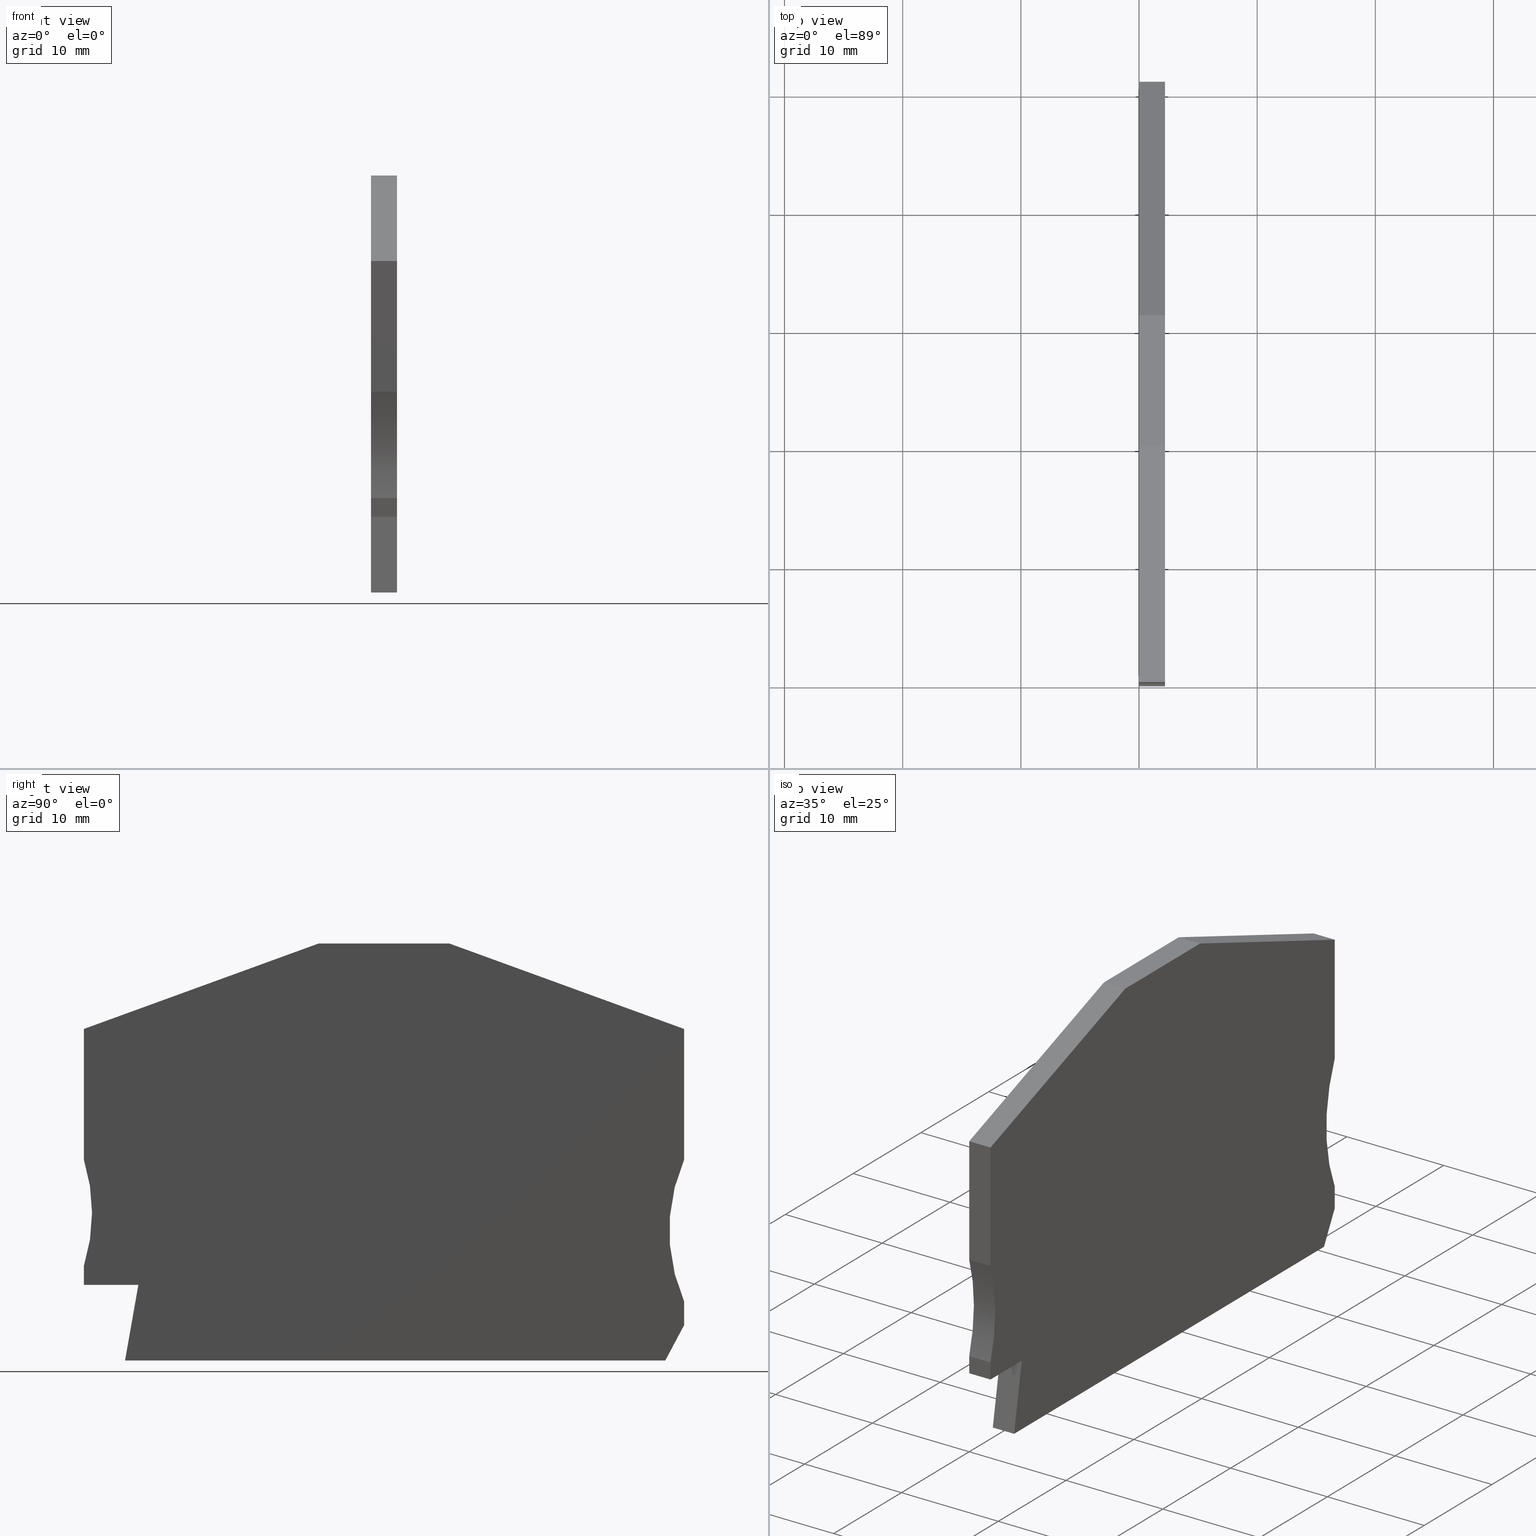
[diagram: canonical four-view strip — front | top / right | iso, engineering-drawing reading convention]
A machine part, canonical four-view strip (front | top / right | iso — engineering-drawing reading convention). The complete STEP part file that produces these views, byte-faithful:
ISO-10303-21;
HEADER;
FILE_DESCRIPTION(('Creo Elements/Direct Modeling STEP Export'),'2;1');
FILE_NAME(
'D:/temp/JobSpoolerServerData/JobServer Files/71022d21-ebdb-4e9b-b267-0f
34ef7dd238/work/output/model.stp','2018-03-20T 7:05:34',(''),(''),
'Creo Elements/Direct Modeling STEP processor for AP214 (Solid Model)',
'Creo Elements/Direct Modeling 18.1I  14-Aug-2016 (C) Parametric Technol
ogy GmbH','');
FILE_SCHEMA(('AUTOMOTIVE_DESIGN { 1 0 10303 214 1 1 1 1 }'));
ENDSEC;
DATA;
#10=CARTESIAN_POINT('',(-39.2384935689211,10.4826632455885,0.));
#20=DIRECTION('',(0.,0.,-1.));
#30=DIRECTION('',(-1.,0.,0.));
#40=AXIS2_PLACEMENT_3D('',#10,#20,#30);
#50=PLANE('',#40);
#60=CARTESIAN_POINT('',(7.89999999999908,0.,0.));
#70=DIRECTION('',(1.77635683940139E-15,-1.,0.));
#80=VECTOR('',#70,1.);
#90=LINE('',#60,#80);
#100=CARTESIAN_POINT('',(7.89999999999907,5.21722499999871,0.));
#110=VERTEX_POINT('',#100);
#120=CARTESIAN_POINT('',(7.89999999999908,3.21722499999996,0.));
#130=VERTEX_POINT('',#120);
#140=EDGE_CURVE('',#110,#130,#90,.T.);
#150=ORIENTED_EDGE('',*,*,#140,.F.);
#160=CARTESIAN_POINT('',(6.18678137793485,0.,0.));
#170=DIRECTION('',(0.470025375689051,0.882652902452808,0.));
#180=VECTOR('',#170,1.);
#190=LINE('',#160,#180);
#200=CARTESIAN_POINT('',(6.30245681722737,0.217224999999992,0.));
#210=VERTEX_POINT('',#200);
#220=EDGE_CURVE('',#210,#130,#190,.T.);
#230=ORIENTED_EDGE('',*,*,#220,.T.);
#240=CARTESIAN_POINT('',(0.,0.217224999999992,0.));
#250=DIRECTION('',(-1.,0.,0.));
#260=VECTOR('',#250,1.);
#270=LINE('',#240,#260);
#280=CARTESIAN_POINT('',(-39.4166561668892,0.217224999999992,0.));
#290=VERTEX_POINT('',#280);
#300=EDGE_CURVE('',#210,#290,#270,.T.);
#310=ORIENTED_EDGE('',*,*,#300,.F.);
#320=CARTESIAN_POINT('',(-39.4549587952736,0.,0.));
#330=DIRECTION('',(0.173648177666793,0.984807753012232,0.));
#340=VECTOR('',#330,1.);
#350=LINE('',#320,#340);
#360=CARTESIAN_POINT('',(-38.2881634903552,6.61722500000401,0.));
#370=VERTEX_POINT('',#360);
#380=EDGE_CURVE('',#290,#370,#350,.T.);
#390=ORIENTED_EDGE('',*,*,#380,.F.);
#400=CARTESIAN_POINT('',(0.,6.61722500000392,0.));
#410=DIRECTION('',(1.,-1.96726162400409E-15,0.));
#420=VECTOR('',#410,1.);
#430=LINE('',#400,#420);
#440=CARTESIAN_POINT('',(-42.9,6.61722500000401,0.));
#450=VERTEX_POINT('',#440);
#460=EDGE_CURVE('',#450,#370,#430,.T.);
#470=ORIENTED_EDGE('',*,*,#460,.T.);
#480=CARTESIAN_POINT('',(-42.9,0.,0.));
#490=DIRECTION('',(0.,1.,0.));
#500=VECTOR('',#490,1.);
#510=LINE('',#480,#500);
#520=CARTESIAN_POINT('',(-42.9,8.21722499999915,0.));
#530=VERTEX_POINT('',#520);
#540=EDGE_CURVE('',#450,#530,#510,.T.);
#550=ORIENTED_EDGE('',*,*,#540,.F.);
#560=CARTESIAN_POINT('',(-57.2090880212678,12.7172249999982,0.));
#570=DIRECTION('',(0.,0.,1.));
#580=DIRECTION('',(1.,0.,0.));
#590=AXIS2_PLACEMENT_3D('',#560,#570,#580);
#600=CIRCLE('',#590,15.0000000000127);
#610=CARTESIAN_POINT('',(-42.9,17.2172249999973,0.));
#620=VERTEX_POINT('',#610);
#630=EDGE_CURVE('',#530,#620,#600,.T.);
#640=ORIENTED_EDGE('',*,*,#630,.F.);
#650=CARTESIAN_POINT('',(-42.9,0.,0.));
#660=DIRECTION('',(0.,-1.,0.));
#670=VECTOR('',#660,1.);
#680=LINE('',#650,#670);
#690=CARTESIAN_POINT('',(-42.9,28.2804146507667,0.));
#700=VERTEX_POINT('',#690);
#710=EDGE_CURVE('',#700,#620,#680,.T.);
#720=ORIENTED_EDGE('',*,*,#710,.T.);
#730=CARTESIAN_POINT('',(0.,43.8947377007868,0.));
#740=DIRECTION('',(0.939692620785908,0.342020143325669,0.));
#750=VECTOR('',#740,1.);
#760=LINE('',#730,#750);
#770=CARTESIAN_POINT('',(-23.017026976606,35.517225,0.));
#780=VERTEX_POINT('',#770);
#790=EDGE_CURVE('',#700,#780,#760,.T.);
#800=ORIENTED_EDGE('',*,*,#790,.F.);
#810=CARTESIAN_POINT('',(0.,35.517225,0.));
#820=DIRECTION('',(1.,0.,0.));
#830=VECTOR('',#820,1.);
#840=LINE('',#810,#830);
#850=CARTESIAN_POINT('',(-11.9829730233949,35.517225,0.));
#860=VERTEX_POINT('',#850);
#870=EDGE_CURVE('',#780,#860,#840,.T.);
#880=ORIENTED_EDGE('',*,*,#870,.F.);
#890=CARTESIAN_POINT('',(0.,31.1557795014694,0.));
#900=DIRECTION('',(-0.939692620785908,0.342020143325669,0.));
#910=VECTOR('',#900,1.);
#920=LINE('',#890,#910);
#930=CARTESIAN_POINT('',(7.89999999999908,28.2804146507667,0.));
#940=VERTEX_POINT('',#930);
#950=EDGE_CURVE('',#940,#860,#920,.T.);
#960=ORIENTED_EDGE('',*,*,#950,.T.);
#970=CARTESIAN_POINT('',(7.89999999999908,0.,0.));
#980=DIRECTION('',(0.,-1.,0.));
#990=VECTOR('',#980,1.);
#1000=LINE('',#970,#990);
#1010=CARTESIAN_POINT('',(7.89999999999907,17.2172249999986,0.));
#1020=VERTEX_POINT('',#1010);
#1030=EDGE_CURVE('',#940,#1020,#1000,.T.);
#1040=ORIENTED_EDGE('',*,*,#1030,.F.);
#1050=CARTESIAN_POINT('',(21.6477270848667,11.2172249999987,0.));
#1060=DIRECTION('',(0.,0.,1.));
#1070=DIRECTION('',(1.,0.,0.));
#1080=AXIS2_PLACEMENT_3D('',#1050,#1060,#1070);
#1090=CIRCLE('',#1080,15.0000000000001);
#1100=EDGE_CURVE('',#1020,#110,#1090,.T.);
#1110=ORIENTED_EDGE('',*,*,#1100,.F.);
#1120=EDGE_LOOP('',(#1110,#1040,#960,#880,#800,#720,#640,#550,#470,#390,
#310,#230,#150));
#1130=FACE_OUTER_BOUND('',#1120,.T.);
#1140=ADVANCED_FACE('',(#1130),#50,.F.);
#1150=COLOUR_RGB('',0.560784339904785,0.588235318660736,
0.600000023841858);
#1160=FILL_AREA_STYLE_COLOUR('',#1150);
#1170=FILL_AREA_STYLE('',(#1160));
#1180=SURFACE_STYLE_FILL_AREA(#1170);
#1190=SURFACE_SIDE_STYLE('',(#1180));
#1200=SURFACE_STYLE_USAGE(.BOTH.,#1190);
#1210=PRESENTATION_STYLE_ASSIGNMENT((#1200));
#1220=CARTESIAN_POINT('',(-23.017026976606,35.517225,-0.799999999999997)
);
#1230=DIRECTION('',(0.342020143325669,-0.939692620785908,0.));
#1240=DIRECTION('',(-0.939692620785908,-0.342020143325669,0.));
#1250=AXIS2_PLACEMENT_3D('',#1220,#1230,#1240);
#1260=PLANE('',#1250);
#1270=CARTESIAN_POINT('',(-23.017026976606,35.517225,0.));
#1280=DIRECTION('',(0.,0.,-1.));
#1290=VECTOR('',#1280,1.);
#1300=LINE('',#1270,#1290);
#1310=CARTESIAN_POINT('',(-23.017026976606,35.517225,-2.2));
#1320=VERTEX_POINT('',#1310);
#1330=EDGE_CURVE('',#780,#1320,#1300,.T.);
#1340=ORIENTED_EDGE('',*,*,#1330,.T.);
#1350=ORIENTED_EDGE('',*,*,#790,.T.);
#1360=CARTESIAN_POINT('',(-42.9,28.2804146507667,0.));
#1370=DIRECTION('',(0.,0.,1.));
#1380=VECTOR('',#1370,1.);
#1390=LINE('',#1360,#1380);
#1400=CARTESIAN_POINT('',(-42.9,28.2804146507667,-2.2));
#1410=VERTEX_POINT('',#1400);
#1420=EDGE_CURVE('',#1410,#700,#1390,.T.);
#1430=ORIENTED_EDGE('',*,*,#1420,.T.);
#1440=CARTESIAN_POINT('',(0.,43.8947377007868,-2.2));
#1450=DIRECTION('',(-0.939692620785908,-0.342020143325669,0.));
#1460=VECTOR('',#1450,1.);
#1470=LINE('',#1440,#1460);
#1480=EDGE_CURVE('',#1320,#1410,#1470,.T.);
#1490=ORIENTED_EDGE('',*,*,#1480,.T.);
#1500=EDGE_LOOP('',(#1490,#1430,#1350,#1340));
#1510=FACE_OUTER_BOUND('',#1500,.T.);
#1520=ADVANCED_FACE('',(#1510),#1260,.F.);
#1530=COLOUR_RGB('',0.560784339904785,0.588235318660736,
0.600000023841858);
#1540=FILL_AREA_STYLE_COLOUR('',#1530);
#1550=FILL_AREA_STYLE('',(#1540));
#1560=SURFACE_STYLE_FILL_AREA(#1550);
#1570=SURFACE_SIDE_STYLE('',(#1560));
#1580=SURFACE_STYLE_USAGE(.BOTH.,#1570);
#1590=PRESENTATION_STYLE_ASSIGNMENT((#1580));
#1600=CARTESIAN_POINT('',(7.66530580490469,2.77649664105722,
-0.799999999999997));
#1610=DIRECTION('',(-0.882652902452808,0.470025375689051,0.));
#1620=DIRECTION('',(-0.470025375689051,-0.882652902452808,0.));
#1630=AXIS2_PLACEMENT_3D('',#1600,#1610,#1620);
#1640=PLANE('',#1630);
#1650=ORIENTED_EDGE('',*,*,#220,.F.);
#1660=CARTESIAN_POINT('',(7.89999999999908,3.21722499999996,0.));
#1670=DIRECTION('',(0.,0.,-1.));
#1680=VECTOR('',#1670,1.);
#1690=LINE('',#1660,#1680);
#1700=CARTESIAN_POINT('',(7.89999999999908,3.21722499999996,-2.2));
#1710=VERTEX_POINT('',#1700);
#1720=EDGE_CURVE('',#130,#1710,#1690,.T.);
#1730=ORIENTED_EDGE('',*,*,#1720,.F.);
#1740=CARTESIAN_POINT('',(6.18678137793485,0.,-2.2));
#1750=DIRECTION('',(0.470025375689051,0.882652902452808,0.));
#1760=VECTOR('',#1750,1.);
#1770=LINE('',#1740,#1760);
#1780=CARTESIAN_POINT('',(6.30245681722737,0.217224999999992,-2.2));
#1790=VERTEX_POINT('',#1780);
#1800=EDGE_CURVE('',#1790,#1710,#1770,.T.);
#1810=ORIENTED_EDGE('',*,*,#1800,.T.);
#1820=CARTESIAN_POINT('',(6.30245681722737,0.217224999999992,0.));
#1830=DIRECTION('',(0.,0.,1.));
#1840=VECTOR('',#1830,1.);
#1850=LINE('',#1820,#1840);
#1860=EDGE_CURVE('',#1790,#210,#1850,.T.);
#1870=ORIENTED_EDGE('',*,*,#1860,.F.);
#1880=EDGE_LOOP('',(#1870,#1810,#1730,#1650));
#1890=FACE_OUTER_BOUND('',#1880,.T.);
#1900=ADVANCED_FACE('',(#1890),#1640,.F.);
#1910=COLOUR_RGB('',0.560784339904785,0.588235318660736,
0.600000023841858);
#1920=FILL_AREA_STYLE_COLOUR('',#1910);
#1930=FILL_AREA_STYLE('',(#1920));
#1940=SURFACE_STYLE_FILL_AREA(#1930);
#1950=SURFACE_SIDE_STYLE('',(#1940));
#1960=SURFACE_STYLE_USAGE(.BOTH.,#1950);
#1970=PRESENTATION_STYLE_ASSIGNMENT((#1960));
#1980=CARTESIAN_POINT('',(10.2656467783244,0.217224999999992,0.));
#1990=DIRECTION('',(-0.,1.,0.));
#2000=DIRECTION('',(1.,0.,0.));
#2010=AXIS2_PLACEMENT_3D('',#1980,#1990,#2000);
#2020=PLANE('',#2010);
#2030=ORIENTED_EDGE('',*,*,#1860,.T.);
#2040=CARTESIAN_POINT('',(0.,0.217224999999992,-2.2));
#2050=DIRECTION('',(1.,0.,0.));
#2060=VECTOR('',#2050,1.);
#2070=LINE('',#2040,#2060);
#2080=CARTESIAN_POINT('',(-39.4166561668892,0.217224999999992,-2.2));
#2090=VERTEX_POINT('',#2080);
#2100=EDGE_CURVE('',#2090,#1790,#2070,.T.);
#2110=ORIENTED_EDGE('',*,*,#2100,.T.);
#2120=CARTESIAN_POINT('',(-39.4166561668892,0.217224999999992,0.));
#2130=DIRECTION('',(0.,0.,-1.));
#2140=VECTOR('',#2130,1.);
#2150=LINE('',#2120,#2140);
#2160=EDGE_CURVE('',#290,#2090,#2150,.T.);
#2170=ORIENTED_EDGE('',*,*,#2160,.T.);
#2180=ORIENTED_EDGE('',*,*,#300,.T.);
#2190=EDGE_LOOP('',(#2180,#2170,#2110,#2030));
#2200=FACE_OUTER_BOUND('',#2190,.T.);
#2210=ADVANCED_FACE('',(#2200),#2020,.F.);
#2220=COLOUR_RGB('',0.560784339904785,0.588235318660736,
0.600000023841858);
#2230=FILL_AREA_STYLE_COLOUR('',#2220);
#2240=FILL_AREA_STYLE('',(#2230));
#2250=SURFACE_STYLE_FILL_AREA(#2240);
#2260=SURFACE_SIDE_STYLE('',(#2250));
#2270=SURFACE_STYLE_USAGE(.BOTH.,#2260);
#2280=PRESENTATION_STYLE_ASSIGNMENT((#2270));
#2290=CARTESIAN_POINT('',(7.89999999999908,28.2804146507667,
-0.799999999999997));
#2300=DIRECTION('',(-0.342020143325669,-0.939692620785908,-0.));
#2310=DIRECTION('',(-0.939692620785908,0.342020143325669,0.));
#2320=AXIS2_PLACEMENT_3D('',#2290,#2300,#2310);
#2330=PLANE('',#2320);
#2340=ORIENTED_EDGE('',*,*,#950,.F.);
#2350=CARTESIAN_POINT('',(-11.9829730233949,35.517225,0.));
#2360=DIRECTION('',(0.,0.,1.));
#2370=VECTOR('',#2360,1.);
#2380=LINE('',#2350,#2370);
#2390=CARTESIAN_POINT('',(-11.9829730233949,35.517225,-2.2));
#2400=VERTEX_POINT('',#2390);
#2410=EDGE_CURVE('',#2400,#860,#2380,.T.);
#2420=ORIENTED_EDGE('',*,*,#2410,.T.);
#2430=CARTESIAN_POINT('',(0.,31.1557795014694,-2.2));
#2440=DIRECTION('',(-0.939692620785908,0.342020143325669,0.));
#2450=VECTOR('',#2440,1.);
#2460=LINE('',#2430,#2450);
#2470=CARTESIAN_POINT('',(7.89999999999908,28.2804146507667,-2.2));
#2480=VERTEX_POINT('',#2470);
#2490=EDGE_CURVE('',#2480,#2400,#2460,.T.);
#2500=ORIENTED_EDGE('',*,*,#2490,.T.);
#2510=CARTESIAN_POINT('',(7.89999999999908,28.2804146507667,0.));
#2520=DIRECTION('',(0.,0.,1.));
#2530=VECTOR('',#2520,1.);
#2540=LINE('',#2510,#2530);
#2550=EDGE_CURVE('',#2480,#940,#2540,.T.);
#2560=ORIENTED_EDGE('',*,*,#2550,.F.);
#2570=EDGE_LOOP('',(#2560,#2500,#2420,#2340));
#2580=FACE_OUTER_BOUND('',#2570,.T.);
#2590=ADVANCED_FACE('',(#2580),#2330,.F.);
#2600=COLOUR_RGB('',0.560784339904785,0.588235318660736,
0.600000023841858);
#2610=FILL_AREA_STYLE_COLOUR('',#2600);
#2620=FILL_AREA_STYLE('',(#2610));
#2630=SURFACE_STYLE_FILL_AREA(#2620);
#2640=SURFACE_SIDE_STYLE('',(#2630));
#2650=SURFACE_STYLE_USAGE(.BOTH.,#2640);
#2660=PRESENTATION_STYLE_ASSIGNMENT((#2650));
#2670=CARTESIAN_POINT('',(-57.2090880212678,12.7172249999982,
-0.799999999999997));
#2680=DIRECTION('',(0.,0.,-1.));
#2690=DIRECTION('',(1.,0.,0.));
#2700=AXIS2_PLACEMENT_3D('',#2670,#2680,#2690);
#2710=CYLINDRICAL_SURFACE('',#2700,15.0000000000127);
#2720=CARTESIAN_POINT('',(-42.9,17.2172249999973,-0.799999999999997));
#2730=DIRECTION('',(0.,0.,-1.));
#2740=VECTOR('',#2730,1.);
#2750=LINE('',#2720,#2740);
#2760=CARTESIAN_POINT('',(-42.9,17.2172249999973,-2.2));
#2770=VERTEX_POINT('',#2760);
#2780=EDGE_CURVE('',#620,#2770,#2750,.T.);
#2790=ORIENTED_EDGE('',*,*,#2780,.T.);
#2800=ORIENTED_EDGE('',*,*,#630,.T.);
#2810=CARTESIAN_POINT('',(-42.9,8.21722499999915,-0.799999999999997));
#2820=DIRECTION('',(0.,0.,1.));
#2830=VECTOR('',#2820,1.);
#2840=LINE('',#2810,#2830);
#2850=CARTESIAN_POINT('',(-42.9,8.21722499999913,-2.2));
#2860=VERTEX_POINT('',#2850);
#2870=EDGE_CURVE('',#2860,#530,#2840,.T.);
#2880=ORIENTED_EDGE('',*,*,#2870,.T.);
#2890=CARTESIAN_POINT('',(-57.2090880212678,12.7172249999982,-2.2));
#2900=DIRECTION('',(0.,0.,1.));
#2910=DIRECTION('',(1.,0.,0.));
#2920=AXIS2_PLACEMENT_3D('',#2890,#2900,#2910);
#2930=CIRCLE('',#2920,15.0000000000127);
#2940=EDGE_CURVE('',#2860,#2770,#2930,.T.);
#2950=ORIENTED_EDGE('',*,*,#2940,.F.);
#2960=EDGE_LOOP('',(#2950,#2880,#2800,#2790));
#2970=FACE_OUTER_BOUND('',#2960,.T.);
#2980=ADVANCED_FACE('',(#2970),#2710,.F.);
#2990=COLOUR_RGB('',0.560784339904785,0.588235318660736,
0.600000023841858);
#3000=FILL_AREA_STYLE_COLOUR('',#2990);
#3010=FILL_AREA_STYLE('',(#3000));
#3020=SURFACE_STYLE_FILL_AREA(#3010);
#3030=SURFACE_SIDE_STYLE('',(#3020));
#3040=SURFACE_STYLE_USAGE(.BOTH.,#3030);
#3050=PRESENTATION_STYLE_ASSIGNMENT((#3040));
#3060=CARTESIAN_POINT('',(21.6477270848667,11.2172249999987,
-0.799999999999997));
#3070=DIRECTION('',(0.,0.,-1.));
#3080=DIRECTION('',(1.,0.,0.));
#3090=AXIS2_PLACEMENT_3D('',#3060,#3070,#3080);
#3100=CYLINDRICAL_SURFACE('',#3090,15.0000000000001);
#3110=CARTESIAN_POINT('',(7.89999999999907,5.21722499999871,
-0.799999999999997));
#3120=DIRECTION('',(0.,0.,-1.));
#3130=VECTOR('',#3120,1.);
#3140=LINE('',#3110,#3130);
#3150=CARTESIAN_POINT('',(7.89999999999907,5.21722499999871,-2.2));
#3160=VERTEX_POINT('',#3150);
#3170=EDGE_CURVE('',#110,#3160,#3140,.T.);
#3180=ORIENTED_EDGE('',*,*,#3170,.T.);
#3190=ORIENTED_EDGE('',*,*,#1100,.T.);
#3200=CARTESIAN_POINT('',(7.89999999999907,17.2172249999986,
-0.799999999999997));
#3210=DIRECTION('',(0.,0.,1.));
#3220=VECTOR('',#3210,1.);
#3230=LINE('',#3200,#3220);
#3240=CARTESIAN_POINT('',(7.89999999999907,17.2172249999986,-2.2));
#3250=VERTEX_POINT('',#3240);
#3260=EDGE_CURVE('',#3250,#1020,#3230,.T.);
#3270=ORIENTED_EDGE('',*,*,#3260,.T.);
#3280=CARTESIAN_POINT('',(21.6477270848667,11.2172249999987,-2.2));
#3290=DIRECTION('',(0.,0.,1.));
#3300=DIRECTION('',(1.,0.,0.));
#3310=AXIS2_PLACEMENT_3D('',#3280,#3290,#3300);
#3320=CIRCLE('',#3310,15.0000000000001);
#3330=EDGE_CURVE('',#3250,#3160,#3320,.T.);
#3340=ORIENTED_EDGE('',*,*,#3330,.F.);
#3350=EDGE_LOOP('',(#3340,#3270,#3190,#3180));
#3360=FACE_OUTER_BOUND('',#3350,.T.);
#3370=ADVANCED_FACE('',(#3360),#3100,.F.);
#3380=COLOUR_RGB('',0.560784339904785,0.588235318660736,
0.600000023841858);
#3390=FILL_AREA_STYLE_COLOUR('',#3380);
#3400=FILL_AREA_STYLE('',(#3390));
#3410=SURFACE_STYLE_FILL_AREA(#3400);
#3420=SURFACE_SIDE_STYLE('',(#3410));
#3430=SURFACE_STYLE_USAGE(.BOTH.,#3420);
#3440=PRESENTATION_STYLE_ASSIGNMENT((#3430));
#3450=CARTESIAN_POINT('',(7.89999999999908,3.71654739243532,
-0.799999999999997));
#3460=DIRECTION('',(-1.,-1.77635683940139E-15,-0.));
#3470=DIRECTION('',(-1.77635683940139E-15,1.,0.));
#3480=AXIS2_PLACEMENT_3D('',#3450,#3460,#3470);
#3490=PLANE('',#3480);
#3500=CARTESIAN_POINT('',(7.89999999999908,0.,-2.2));
#3510=DIRECTION('',(-1.77635683940139E-15,1.,0.));
#3520=VECTOR('',#3510,1.);
#3530=LINE('',#3500,#3520);
#3540=EDGE_CURVE('',#1710,#3160,#3530,.T.);
#3550=ORIENTED_EDGE('',*,*,#3540,.T.);
#3560=ORIENTED_EDGE('',*,*,#1720,.T.);
#3570=ORIENTED_EDGE('',*,*,#140,.T.);
#3580=ORIENTED_EDGE('',*,*,#3170,.F.);
#3590=EDGE_LOOP('',(#3580,#3570,#3560,#3550));
#3600=FACE_OUTER_BOUND('',#3590,.T.);
#3610=ADVANCED_FACE('',(#3600),#3490,.F.);
#3620=COLOUR_RGB('',0.560784339904785,0.588235318660736,
0.600000023841858);
#3630=FILL_AREA_STYLE_COLOUR('',#3620);
#3640=FILL_AREA_STYLE('',(#3630));
#3650=SURFACE_STYLE_FILL_AREA(#3640);
#3660=SURFACE_SIDE_STYLE('',(#3650));
#3670=SURFACE_STYLE_USAGE(.BOTH.,#3660);
#3680=PRESENTATION_STYLE_ASSIGNMENT((#3670));
#3690=CARTESIAN_POINT('',(7.89999999999908,17.2172249999986,
-0.799999999999997));
#3700=DIRECTION('',(-1.,0.,0.));
#3710=DIRECTION('',(0.,1.,0.));
#3720=AXIS2_PLACEMENT_3D('',#3690,#3700,#3710);
#3730=PLANE('',#3720);
#3740=ORIENTED_EDGE('',*,*,#2550,.T.);
#3750=CARTESIAN_POINT('',(7.89999999999908,0.,-2.2));
#3760=DIRECTION('',(0.,1.,0.));
#3770=VECTOR('',#3760,1.);
#3780=LINE('',#3750,#3770);
#3790=EDGE_CURVE('',#3250,#2480,#3780,.T.);
#3800=ORIENTED_EDGE('',*,*,#3790,.T.);
#3810=ORIENTED_EDGE('',*,*,#3260,.F.);
#3820=ORIENTED_EDGE('',*,*,#1030,.T.);
#3830=EDGE_LOOP('',(#3820,#3810,#3800,#3740));
#3840=FACE_OUTER_BOUND('',#3830,.T.);
#3850=ADVANCED_FACE('',(#3840),#3730,.F.);
#3860=COLOUR_RGB('',0.560784339904785,0.588235318660736,
0.600000023841858);
#3870=FILL_AREA_STYLE_COLOUR('',#3860);
#3880=FILL_AREA_STYLE('',(#3870));
#3890=SURFACE_STYLE_FILL_AREA(#3880);
#3900=SURFACE_SIDE_STYLE('',(#3890));
#3910=SURFACE_STYLE_USAGE(.BOTH.,#3900);
#3920=PRESENTATION_STYLE_ASSIGNMENT((#3910));
#3930=CARTESIAN_POINT('',(-23.017026976606,35.517225,-0.799999999999997)
);
#3940=DIRECTION('',(0.,-1.,0.));
#3950=DIRECTION('',(1.,0.,0.));
#3960=AXIS2_PLACEMENT_3D('',#3930,#3940,#3950);
#3970=PLANE('',#3960);
#3980=ORIENTED_EDGE('',*,*,#870,.T.);
#3990=ORIENTED_EDGE('',*,*,#1330,.F.);
#4000=CARTESIAN_POINT('',(0.,35.517225,-2.2));
#4010=DIRECTION('',(-1.,0.,0.));
#4020=VECTOR('',#4010,1.);
#4030=LINE('',#4000,#4020);
#4040=EDGE_CURVE('',#2400,#1320,#4030,.T.);
#4050=ORIENTED_EDGE('',*,*,#4040,.T.);
#4060=ORIENTED_EDGE('',*,*,#2410,.F.);
#4070=EDGE_LOOP('',(#4060,#4050,#3990,#3980));
#4080=FACE_OUTER_BOUND('',#4070,.T.);
#4090=ADVANCED_FACE('',(#4080),#3970,.F.);
#4100=COLOUR_RGB('',0.560784339904785,0.588235318660736,
0.600000023841858);
#4110=FILL_AREA_STYLE_COLOUR('',#4100);
#4120=FILL_AREA_STYLE('',(#4110));
#4130=SURFACE_STYLE_FILL_AREA(#4120);
#4140=SURFACE_SIDE_STYLE('',(#4130));
#4150=SURFACE_STYLE_USAGE(.BOTH.,#4140);
#4160=PRESENTATION_STYLE_ASSIGNMENT((#4150));
#4170=CARTESIAN_POINT('',(-42.9,7.91997079420809,-0.799999999999997));
#4180=DIRECTION('',(1.,0.,0.));
#4190=DIRECTION('',(0.,-1.,0.));
#4200=AXIS2_PLACEMENT_3D('',#4170,#4180,#4190);
#4210=PLANE('',#4200);
#4220=CARTESIAN_POINT('',(-42.9,0.,-2.2));
#4230=DIRECTION('',(0.,-1.,0.));
#4240=VECTOR('',#4230,1.);
#4250=LINE('',#4220,#4240);
#4260=CARTESIAN_POINT('',(-42.9,6.61722500000401,-2.2));
#4270=VERTEX_POINT('',#4260);
#4280=EDGE_CURVE('',#2860,#4270,#4250,.T.);
#4290=ORIENTED_EDGE('',*,*,#4280,.T.);
#4300=ORIENTED_EDGE('',*,*,#2870,.F.);
#4310=ORIENTED_EDGE('',*,*,#540,.T.);
#4320=CARTESIAN_POINT('',(-42.9,6.61722500000401,0.));
#4330=DIRECTION('',(0.,0.,-1.));
#4340=VECTOR('',#4330,1.);
#4350=LINE('',#4320,#4340);
#4360=EDGE_CURVE('',#450,#4270,#4350,.T.);
#4370=ORIENTED_EDGE('',*,*,#4360,.F.);
#4380=EDGE_LOOP('',(#4370,#4310,#4300,#4290));
#4390=FACE_OUTER_BOUND('',#4380,.T.);
#4400=ADVANCED_FACE('',(#4390),#4210,.F.);
#4410=COLOUR_RGB('',0.560784339904785,0.588235318660736,
0.600000023841858);
#4420=FILL_AREA_STYLE_COLOUR('',#4410);
#4430=FILL_AREA_STYLE('',(#4420));
#4440=SURFACE_STYLE_FILL_AREA(#4430);
#4450=SURFACE_SIDE_STYLE('',(#4440));
#4460=SURFACE_STYLE_USAGE(.BOTH.,#4450);
#4470=PRESENTATION_STYLE_ASSIGNMENT((#4460));
#4480=CARTESIAN_POINT('',(-42.9,28.2804146507667,-0.799999999999997));
#4490=DIRECTION('',(1.,0.,0.));
#4500=DIRECTION('',(0.,-1.,0.));
#4510=AXIS2_PLACEMENT_3D('',#4480,#4490,#4500);
#4520=PLANE('',#4510);
#4530=CARTESIAN_POINT('',(-42.9,0.,-2.2));
#4540=DIRECTION('',(0.,-1.,0.));
#4550=VECTOR('',#4540,1.);
#4560=LINE('',#4530,#4550);
#4570=EDGE_CURVE('',#1410,#2770,#4560,.T.);
#4580=ORIENTED_EDGE('',*,*,#4570,.T.);
#4590=ORIENTED_EDGE('',*,*,#1420,.F.);
#4600=ORIENTED_EDGE('',*,*,#710,.F.);
#4610=ORIENTED_EDGE('',*,*,#2780,.F.);
#4620=EDGE_LOOP('',(#4610,#4600,#4590,#4580));
#4630=FACE_OUTER_BOUND('',#4620,.T.);
#4640=ADVANCED_FACE('',(#4630),#4520,.F.);
#4650=COLOUR_RGB('',0.560784339904785,0.588235318660736,
0.600000023841858);
#4660=FILL_AREA_STYLE_COLOUR('',#4650);
#4670=FILL_AREA_STYLE('',(#4660));
#4680=SURFACE_STYLE_FILL_AREA(#4670);
#4690=SURFACE_SIDE_STYLE('',(#4680));
#4700=SURFACE_STYLE_USAGE(.BOTH.,#4690);
#4710=PRESENTATION_STYLE_ASSIGNMENT((#4700));
#4720=CARTESIAN_POINT('',(-14.2774044461,25.5883479499399,-2.2));
#4730=DIRECTION('',(0.,0.,-1.));
#4740=DIRECTION('',(-1.,0.,0.));
#4750=AXIS2_PLACEMENT_3D('',#4720,#4730,#4740);
#4760=PLANE('',#4750);
#4770=ORIENTED_EDGE('',*,*,#3330,.T.);
#4780=ORIENTED_EDGE('',*,*,#3790,.F.);
#4790=ORIENTED_EDGE('',*,*,#2490,.F.);
#4800=ORIENTED_EDGE('',*,*,#4040,.F.);
#4810=ORIENTED_EDGE('',*,*,#1480,.F.);
#4820=ORIENTED_EDGE('',*,*,#4570,.F.);
#4830=ORIENTED_EDGE('',*,*,#2940,.T.);
#4840=ORIENTED_EDGE('',*,*,#4280,.F.);
#4850=CARTESIAN_POINT('',(0.,6.61722500000392,-2.2));
#4860=DIRECTION('',(-1.,1.96726162400409E-15,0.));
#4870=VECTOR('',#4860,1.);
#4880=LINE('',#4850,#4870);
#4890=CARTESIAN_POINT('',(-38.2881634903552,6.61722500000401,-2.2));
#4900=VERTEX_POINT('',#4890);
#4910=EDGE_CURVE('',#4900,#4270,#4880,.T.);
#4920=ORIENTED_EDGE('',*,*,#4910,.T.);
#4930=CARTESIAN_POINT('',(-39.4549587952736,0.,-2.2));
#4940=DIRECTION('',(-0.173648177666793,-0.984807753012232,0.));
#4950=VECTOR('',#4940,1.);
#4960=LINE('',#4930,#4950);
#4970=EDGE_CURVE('',#4900,#2090,#4960,.T.);
#4980=ORIENTED_EDGE('',*,*,#4970,.F.);
#4990=ORIENTED_EDGE('',*,*,#2100,.F.);
#5000=ORIENTED_EDGE('',*,*,#1800,.F.);
#5010=ORIENTED_EDGE('',*,*,#3540,.F.);
#5020=EDGE_LOOP('',(#5010,#5000,#4990,#4980,#4920,#4840,#4830,#4820,
#4810,#4800,#4790,#4780,#4770));
#5030=FACE_OUTER_BOUND('',#5020,.T.);
#5040=ADVANCED_FACE('',(#5030),#4760,.T.);
#5050=COLOUR_RGB('',0.560784339904785,0.588235318660736,
0.600000023841858);
#5060=FILL_AREA_STYLE_COLOUR('',#5050);
#5070=FILL_AREA_STYLE('',(#5060));
#5080=SURFACE_STYLE_FILL_AREA(#5070);
#5090=SURFACE_SIDE_STYLE('',(#5080));
#5100=SURFACE_STYLE_USAGE(.BOTH.,#5090);
#5110=PRESENTATION_STYLE_ASSIGNMENT((#5100));
#5120=CARTESIAN_POINT('',(-38.2881634903552,6.617225000004,-2.2));
#5130=DIRECTION('',(-1.96726162400409E-15,-1.,0.));
#5140=DIRECTION('',(1.,-1.96726162400409E-15,0.));
#5150=AXIS2_PLACEMENT_3D('',#5120,#5130,#5140);
#5160=PLANE('',#5150);
#5170=ORIENTED_EDGE('',*,*,#4360,.T.);
#5180=ORIENTED_EDGE('',*,*,#460,.F.);
#5190=CARTESIAN_POINT('',(-38.2881634903552,6.617225000004,0.));
#5200=DIRECTION('',(0.,0.,-1.));
#5210=VECTOR('',#5200,1.);
#5220=LINE('',#5190,#5210);
#5230=EDGE_CURVE('',#370,#4900,#5220,.T.);
#5240=ORIENTED_EDGE('',*,*,#5230,.F.);
#5250=ORIENTED_EDGE('',*,*,#4910,.F.);
#5260=EDGE_LOOP('',(#5250,#5240,#5180,#5170));
#5270=FACE_OUTER_BOUND('',#5260,.T.);
#5280=ADVANCED_FACE('',(#5270),#5160,.T.);
#5290=COLOUR_RGB('',0.560784339904785,0.588235318660736,
0.600000023841858);
#5300=FILL_AREA_STYLE_COLOUR('',#5290);
#5310=FILL_AREA_STYLE('',(#5300));
#5320=SURFACE_STYLE_FILL_AREA(#5310);
#5330=SURFACE_SIDE_STYLE('',(#5320));
#5340=SURFACE_STYLE_USAGE(.BOTH.,#5330);
#5350=PRESENTATION_STYLE_ASSIGNMENT((#5340));
#5360=CARTESIAN_POINT('',(-38.2881634903552,6.61722500000401,
-4.40000240000002));
#5370=DIRECTION('',(0.984807753012232,-0.173648177666793,0.));
#5380=DIRECTION('',(-0.173648177666793,-0.984807753012232,0.));
#5390=AXIS2_PLACEMENT_3D('',#5360,#5370,#5380);
#5400=PLANE('',#5390);
#5410=ORIENTED_EDGE('',*,*,#5230,.T.);
#5420=ORIENTED_EDGE('',*,*,#380,.T.);
#5430=ORIENTED_EDGE('',*,*,#2160,.F.);
#5440=ORIENTED_EDGE('',*,*,#4970,.T.);
#5450=EDGE_LOOP('',(#5440,#5430,#5420,#5410));
#5460=FACE_OUTER_BOUND('',#5450,.T.);
#5470=ADVANCED_FACE('',(#5460),#5400,.F.);
#5480=COLOUR_RGB('',0.560784339904785,0.588235318660736,
0.600000023841858);
#5490=FILL_AREA_STYLE_COLOUR('',#5480);
#5500=FILL_AREA_STYLE('',(#5490));
#5510=SURFACE_STYLE_FILL_AREA(#5500);
#5520=SURFACE_SIDE_STYLE('',(#5510));
#5530=SURFACE_STYLE_USAGE(.BOTH.,#5520);
#5540=PRESENTATION_STYLE_ASSIGNMENT((#5530));
#5550=CLOSED_SHELL('',(#1140,#1520,#1900,#2210,#2590,#2980,#3370,#3610,
#3850,#4090,#4400,#4640,#5040,#5280,#5470));
#5560=MANIFOLD_SOLID_BREP('',#5550);
#5570=CARTESIAN_POINT('',(0.,0.,0.));
#5580=DIRECTION('',(0.,0.,1.));
#5590=DIRECTION('',(1.,0.,0.));
#5600=AXIS2_PLACEMENT_3D('',#5570,#5580,#5590);
#5610=APPLICATION_CONTEXT(' ');
#5620=APPLICATION_PROTOCOL_DEFINITION(' ','automotive_design',1998,#5610
);
#5630=PRODUCT_CONTEXT('',#5610,'mechanical');
#5640=PRODUCT_DEFINITION_CONTEXT('part definition',#5610,'design');
#5650=PRODUCT('d-sts_25-select','d-sts_25-select','',(#5630));
#5660=PRODUCT_RELATED_PRODUCT_CATEGORY('part',' ',(#5650));
#5670=PRODUCT_DEFINITION_FORMATION_WITH_SPECIFIED_SOURCE('','',#5650,
.BOUGHT.);
#5680=PRODUCT_DEFINITION('',' ',#5670,#5640);
#5690=PRODUCT_DEFINITION_SHAPE('','',#5680);
#5700=DIMENSIONAL_EXPONENTS(1.,0.,0.,0.,0.,0.,0.);
#5710=DIMENSIONAL_EXPONENTS(0.,0.,0.,0.,0.,0.,0.);
#5720=DIMENSIONAL_EXPONENTS(0.,0.,0.,0.,0.,0.,0.);
#5730=(LENGTH_UNIT() NAMED_UNIT(*) SI_UNIT(.MILLI.,.METRE.));
#5740=(NAMED_UNIT(*) PLANE_ANGLE_UNIT() SI_UNIT($,.RADIAN.));
#5750=(NAMED_UNIT(*) SI_UNIT($,.STERADIAN.) SOLID_ANGLE_UNIT());
#5760=(GEOMETRIC_REPRESENTATION_CONTEXT(3) 
GLOBAL_UNCERTAINTY_ASSIGNED_CONTEXT((#5770)) 
GLOBAL_UNIT_ASSIGNED_CONTEXT((#5730,#5740,#5750)) REPRESENTATION_CONTEXT
('',''));
#5770=UNCERTAINTY_MEASURE_WITH_UNIT(LENGTH_MEASURE(1.E-6),#5730,
'distance_accuracy_value','maximum gap value');
#5780=ADVANCED_BREP_SHAPE_REPRESENTATION('',(#5600,#5560),#5760);
#5790=SHAPE_DEFINITION_REPRESENTATION(#5690,#5780);
#5800=COLOUR_RGB('',0.560784339904785,0.588235318660736,
0.600000023841858);
#5810=FILL_AREA_STYLE_COLOUR('',#5800);
#5820=FILL_AREA_STYLE('',(#5810));
#5830=SURFACE_STYLE_FILL_AREA(#5820);
#5840=SURFACE_SIDE_STYLE('',(#5830));
#5850=SURFACE_STYLE_USAGE(.BOTH.,#5840);
#5860=PRESENTATION_STYLE_ASSIGNMENT((#5850));
#5870=STYLED_ITEM('',(#5860),#5560);
#5880=OVER_RIDING_STYLED_ITEM('',(#1210),#1140,#5870);
#5890=OVER_RIDING_STYLED_ITEM('',(#1590),#1520,#5870);
#5900=OVER_RIDING_STYLED_ITEM('',(#1970),#1900,#5870);
#5910=OVER_RIDING_STYLED_ITEM('',(#2280),#2210,#5870);
#5920=OVER_RIDING_STYLED_ITEM('',(#2660),#2590,#5870);
#5930=OVER_RIDING_STYLED_ITEM('',(#3050),#2980,#5870);
#5940=OVER_RIDING_STYLED_ITEM('',(#3440),#3370,#5870);
#5950=OVER_RIDING_STYLED_ITEM('',(#3680),#3610,#5870);
#5960=OVER_RIDING_STYLED_ITEM('',(#3920),#3850,#5870);
#5970=OVER_RIDING_STYLED_ITEM('',(#4160),#4090,#5870);
#5980=OVER_RIDING_STYLED_ITEM('',(#4470),#4400,#5870);
#5990=OVER_RIDING_STYLED_ITEM('',(#4710),#4640,#5870);
#6000=OVER_RIDING_STYLED_ITEM('',(#5110),#5040,#5870);
#6010=OVER_RIDING_STYLED_ITEM('',(#5350),#5280,#5870);
#6020=OVER_RIDING_STYLED_ITEM('',(#5540),#5470,#5870);
#6030=DRAUGHTING_MODEL('',(#5870,#5880,#5890,#5900,#5910,#5920,#5930,
#5940,#5950,#5960,#5970,#5980,#5990,#6000,#6010,#6020),#5760);
#6040=CARTESIAN_POINT('',(2.2,42.9,-0.217225000000268));
#6050=DIRECTION('',(1.,-3.08148791101958E-33,5.55111512312578E-17));
#6060=DIRECTION('',(0.,1.,5.55111512312578E-17));
#6070=AXIS2_PLACEMENT_3D('',#6040,#6050,#6060);
#6080=ITEM_DEFINED_TRANSFORMATION('d-sts_25-select','',#5600,#6070);
#6090=APPLICATION_CONTEXT(' ');
#6100=APPLICATION_PROTOCOL_DEFINITION(' ','automotive_design',1998,#6090
);
#6110=PRODUCT_CONTEXT('',#6090,'mechanical');
#6120=PRODUCT_DEFINITION_CONTEXT('part definition',#6090,'design');
#6130=PRODUCT('d-sts_25-select','d-sts_25-select','',(#6110));
#6140=PRODUCT_RELATED_PRODUCT_CATEGORY('part',' ',(#6130));
#6150=PRODUCT_DEFINITION_FORMATION_WITH_SPECIFIED_SOURCE('','',#6130,
.BOUGHT.);
#6160=PRODUCT_DEFINITION('',' ',#6150,#6120);
#6170=PRODUCT_DEFINITION_SHAPE('','',#6160);
#6180=DIMENSIONAL_EXPONENTS(1.,0.,0.,0.,0.,0.,0.);
#6190=DIMENSIONAL_EXPONENTS(0.,0.,0.,0.,0.,0.,0.);
#6200=DIMENSIONAL_EXPONENTS(0.,0.,0.,0.,0.,0.,0.);
#6210=(LENGTH_UNIT() NAMED_UNIT(*) SI_UNIT(.MILLI.,.METRE.));
#6220=(NAMED_UNIT(*) PLANE_ANGLE_UNIT() SI_UNIT($,.RADIAN.));
#6230=(NAMED_UNIT(*) SI_UNIT($,.STERADIAN.) SOLID_ANGLE_UNIT());
#6240=(GEOMETRIC_REPRESENTATION_CONTEXT(3) 
GLOBAL_UNCERTAINTY_ASSIGNED_CONTEXT((#6250)) 
GLOBAL_UNIT_ASSIGNED_CONTEXT((#6210,#6220,#6230)) REPRESENTATION_CONTEXT
('',''));
#6250=UNCERTAINTY_MEASURE_WITH_UNIT(LENGTH_MEASURE(1.E-6),#6210,
'distance_accuracy_value','maximum gap value');
#6260=SHAPE_REPRESENTATION('',(#5600,#6070),#6240);
#6270=SHAPE_DEFINITION_REPRESENTATION(#6170,#6260);
#6280=(REPRESENTATION_RELATIONSHIP('','',#5780,#6260) 
REPRESENTATION_RELATIONSHIP_WITH_TRANSFORMATION(#6080) 
SHAPE_REPRESENTATION_RELATIONSHIP());
#6290=NEXT_ASSEMBLY_USAGE_OCCURRENCE('1','','d-sts_25-select',#6160,
#5680,'');
#6300=PRODUCT_DEFINITION_SHAPE('','',#6290);
#6310=CONTEXT_DEPENDENT_SHAPE_REPRESENTATION(#6280,#6300);
ENDSEC;
END-ISO-10303-21;
